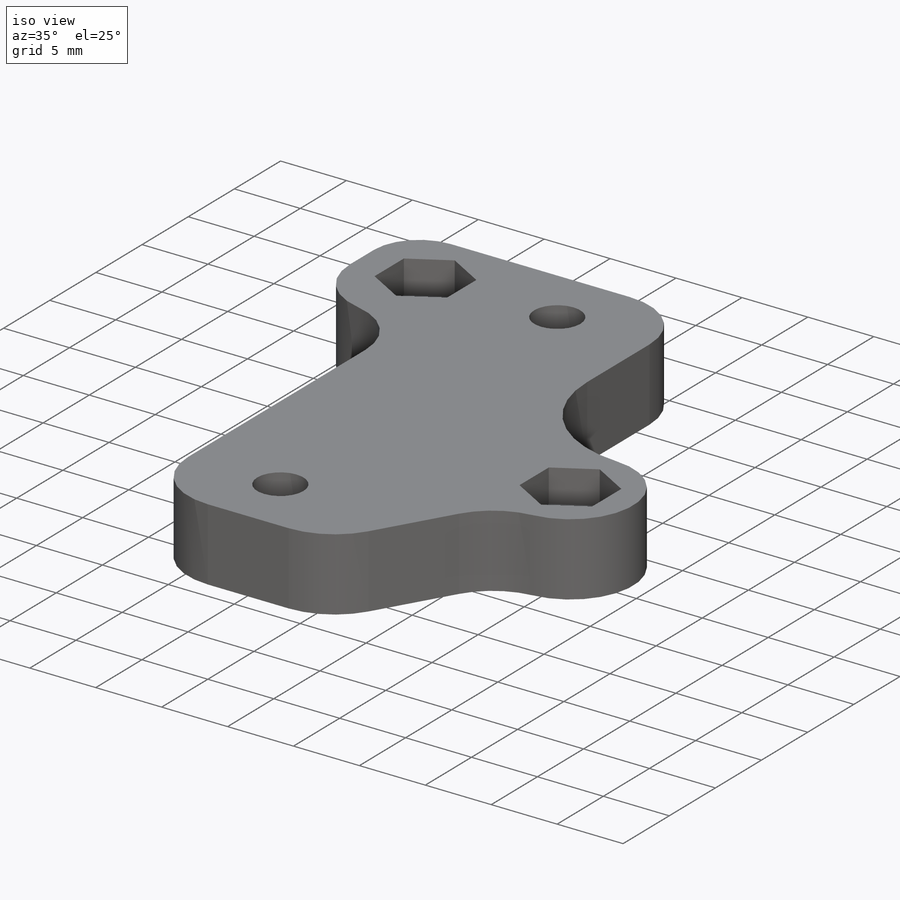
[diagram: iso view]
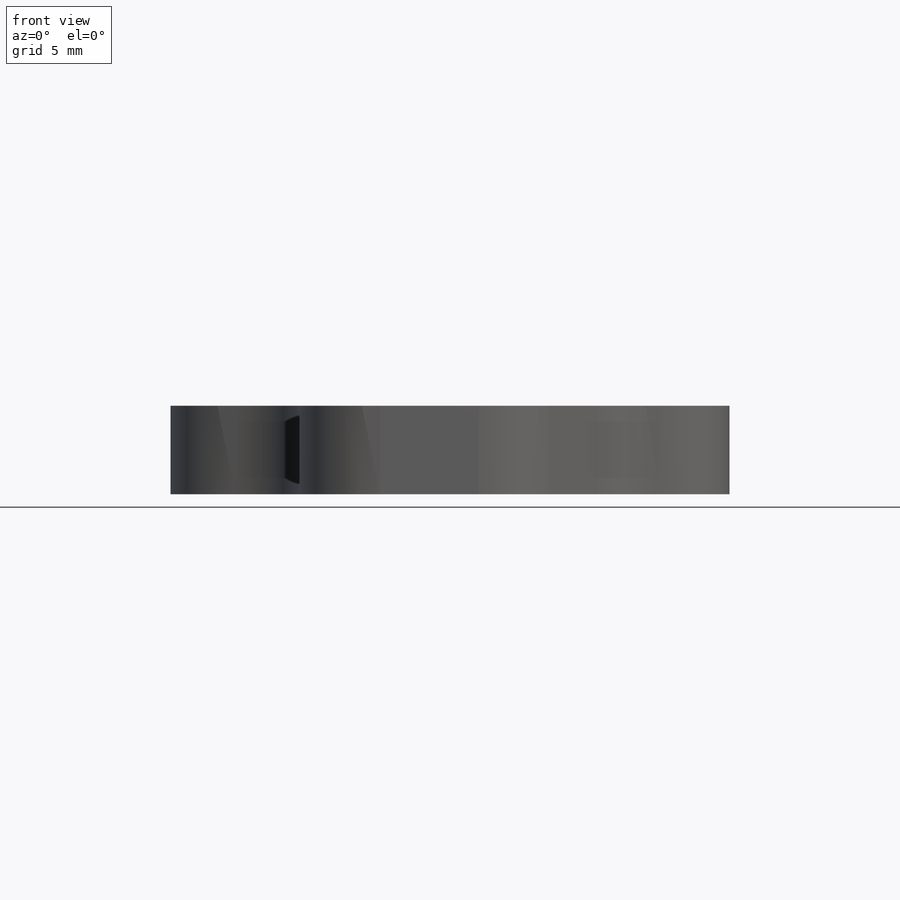
[diagram: front view]
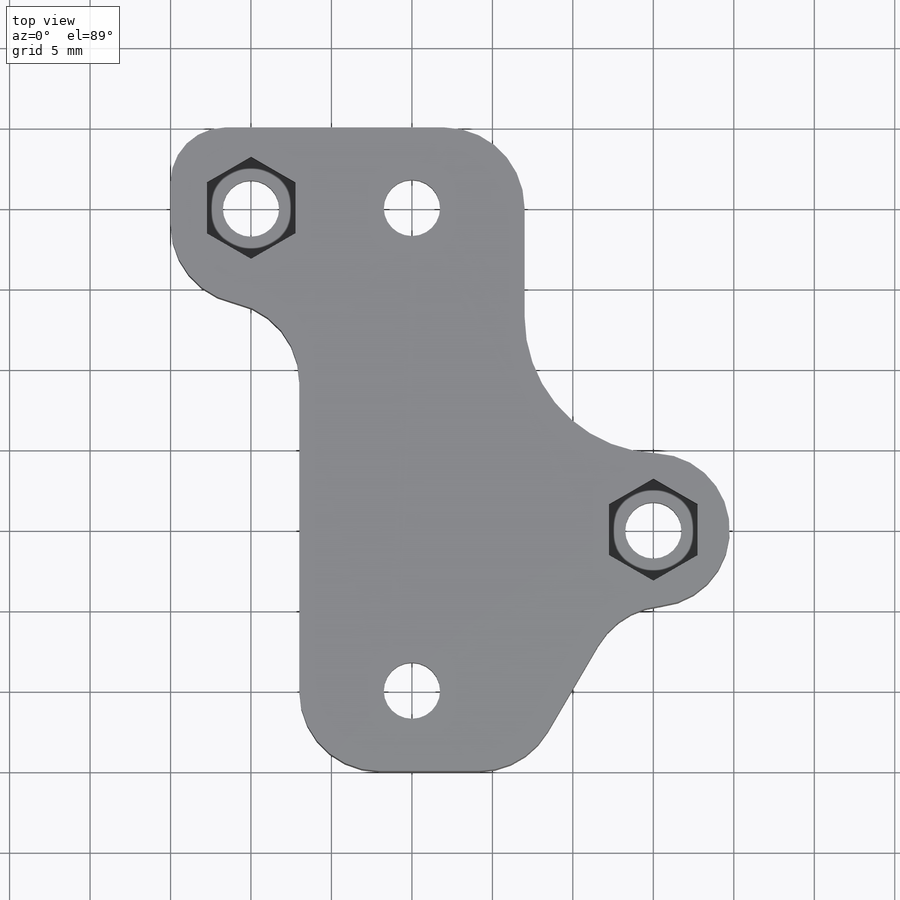
[diagram: top view]
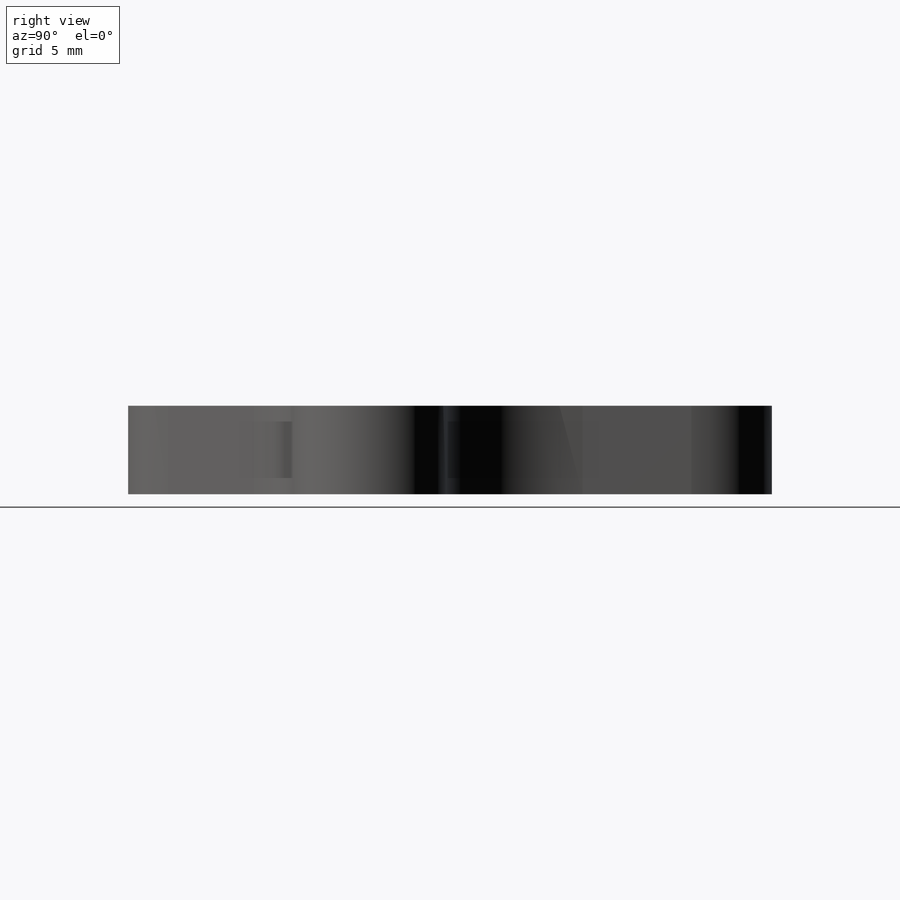
[diagram: right view]
SOLIDWORKS PART (.sldprt)
format: sldprt  version: not decoded by parser v0  size: 306,688 bytes
history: native  units: mm
features: sketch x4, cut_extrude x3, fillet x2, material x1, extrude x1 (+12 scaffold rows collapsed)
feature tree (23):
  scaffold x12  (default folders/planes/origin — collapsed)
  material  "ABS PC"
  sketch  "Sketch2"  dims[c1.D3=3.5mm c1.D4=3.5mm c1.D5=3.5mm c1.D6=3.5mm c1.D7=3.5mm c1.D8=20.0mm c1.D9=20.0mm c1.D10=10.0mm c1.D1=35.0mm c1.D2=40.0mm c2.D4=25.0mm c2.D5=20.0mm c2.D6=5.0mm c2.D7=5.0mm c2.D8=10.0mm c2.D13=10.0mm c2.D14=5.0mm c3.D8=35.0mm]
  extrude  "Boss-Extrude2"  Depth=5.5mm
  sketch  "Sketch3"  dims[D1=5.5mm]
  cut_extrude  "Cut-Extrude1"  Depth=3mm
  sketch  "Sketch4"  dims[D1=5.5mm]
  cut_extrude  "Cut-Extrude2"  Depth=10mm
  sketch  "Sketch5"  dims[c1.D1=4.75mm c1.D5=3.5mm c2.D1=3.5mm c2.D2=7.0mm c2.D3=9.5mm c2.D4=2.0mm c2.D5=6.0mm c2.D6=5.0mm c2.D7=7.0mm]
  cut_extrude  "Cut-Extrude3"  [1 undecoded]
  fillet  "Fillet3"  Radius=5mm
  fillet  "Fillet4"  Radius=8.5mm
decode coverage: 9 of 10 modeling features carry decoded parameters
note: 1 parameter value undecoded
note: suppression state not decoded; provenance and decode notes live in map.json
